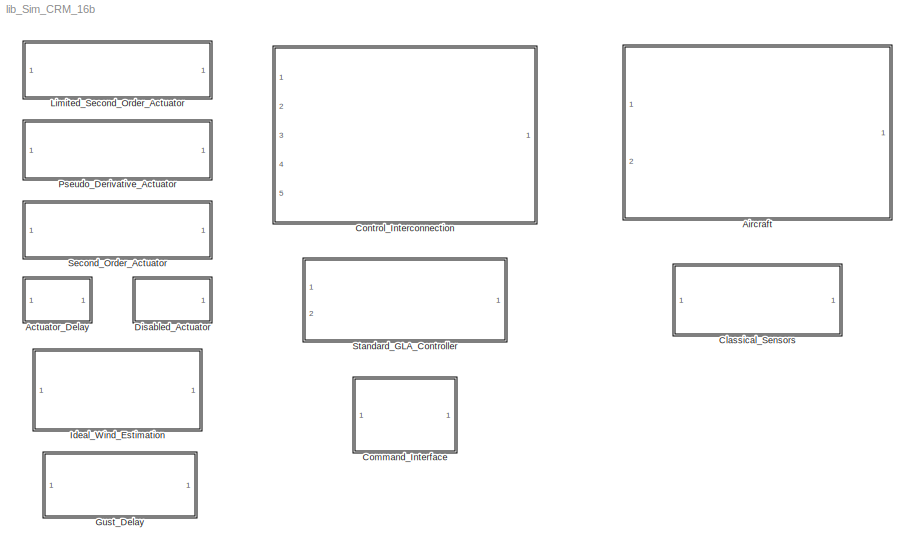
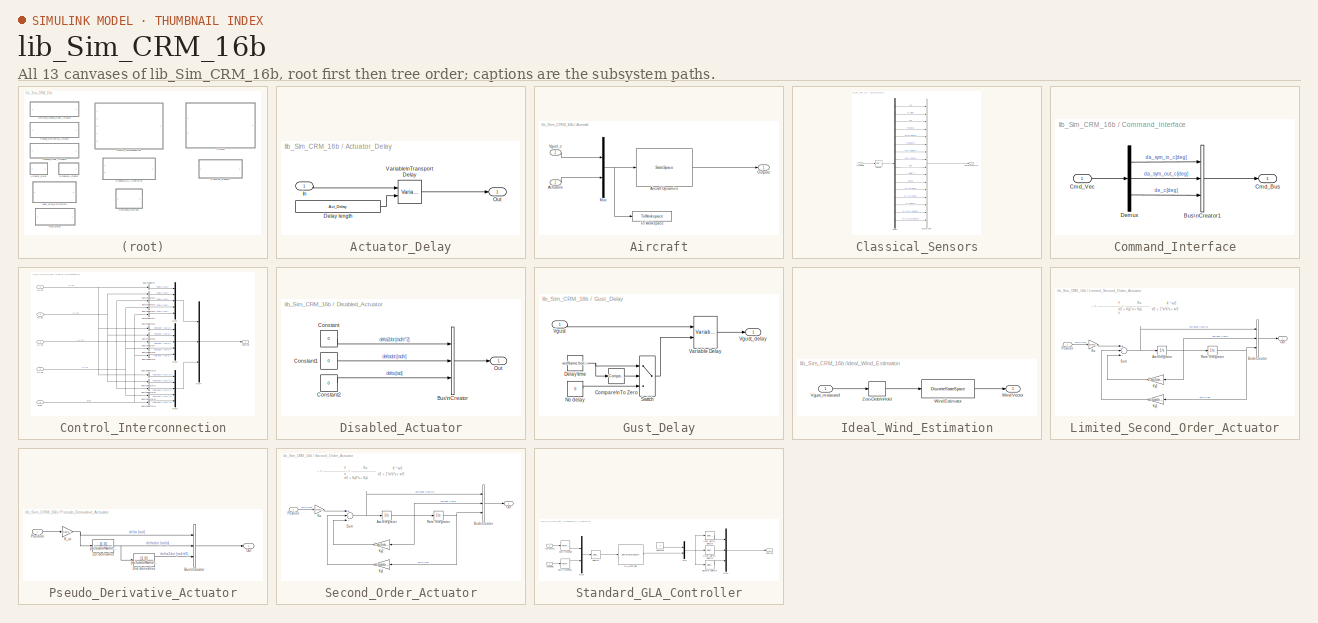
[diagram: thumbnail index - all 13 canvases of the model, root first then tree order]
MODEL lib_Sim_CRM_16b
KIND library
BLOCK [SubSystem] Actuator_Delay
  Ports = [1, 1]
  RequestExecContextInheritance = off
  SID = 129
BLOCK [Constant] Actuator_Delay/Delay length
  SID = 131
  Value = Act_Delay
BLOCK [Inport] Actuator_Delay/In
  IconDisplay = Port number
  SID = 130
BLOCK [Outport] Actuator_Delay/Out
  IconDisplay = Port number
  SID = 133
BLOCK [VariableTransportDelay] Actuator_Delay/Variable\nTransport Delay
  MaximumDelay = Act_Delay
  Ports = [2, 1]
  SID = 132
  ZeroDelay = on
BLOCK [SubSystem] Aircraft
  Ports = [2, 1]
  RequestExecContextInheritance = off
  SID = 1
BLOCK [Inport] Aircraft/Actuators
  IconDisplay = Port number
  SID = 2
BLOCK [StateSpace] Aircraft/Aircraft Dynamics
  A = modelName.linear_sys.A
  B = modelName.linear_sys.B
  C = [modelName.C_sensors; modelName.C_outputs]
  D = [modelName.D_sensors; modelName.D_outputs]
  Ports = [1, 1]
  SID = 4
  X0 = 0
BLOCK [Mux] Aircraft/Mux
  DisplayOption = bar
  Inputs = 2
  Ports = [2, 1]
  SID = 6
BLOCK [Outport] Aircraft/Outputs
  IconDisplay = Port number
  SID = 8
BLOCK [ToWorkspace] Aircraft/To Workspace
  Decimation = SimConfig.Logging.DecimationFactor
  FixptAsFi = on
  MaxDataPoints = inf
  Ports = [1]
  SID = 134
  SampleTime = -1
  SaveFormat = Structure With Time
  VariableName = Aircraft_Inputs
BLOCK [Inport] Aircraft/Vgust_z
  IconDisplay = Port number
  Port = 2
  SID = 3
BLOCK [SubSystem] Classical_Sensors
  Ports = [1, 1]
  RequestExecContextInheritance = off
  SID = 123
BLOCK [Inport] Classical_Sensors/AC_Outputs
  IconDisplay = Port number
  SID = 124
BLOCK [BusCreator] Classical_Sensors/Bus\nCreator
  DisplayOption = bar
  InheritFromInputs = on
  Inputs = 16
  Ports = [16, 1]
  SID = 125
BLOCK [Outport] Classical_Sensors/Classical_Sensors
  IconDisplay = Port number
  SID = 128
BLOCK [Demux] Classical_Sensors/Demux
  DisplayOption = bar
  Outputs = 16
  Ports = [1, 16]
  SID = 126
BLOCK [Selector] Classical_Sensors/Selector
  IndexOptions = Index vector (dialog)
  Indices = 1:CRM.Sensors.Classical.Num_Signals
  OutputSizes = 1
  Ports = [1, 1]
  SID = 127
BLOCK [SubSystem] Command_Interface
  Ports = [1, 1]
  RequestExecContextInheritance = off
  SID = 118
BLOCK [BusCreator] Command_Interface/Bus\nCreator1
  DisplayOption = bar
  InheritFromInputs = on
  Inputs = 3
  Ports = [3, 1]
  SID = 120
BLOCK [Outport] Command_Interface/Cmd_Bus
  IconDisplay = Port number
  SID = 122
BLOCK [Inport] Command_Interface/Cmd_Vec
  IconDisplay = Port number
  SID = 119
BLOCK [Demux] Command_Interface/Demux
  DisplayOption = bar
  Outputs = 3
  Ports = [1, 3]
  SID = 121
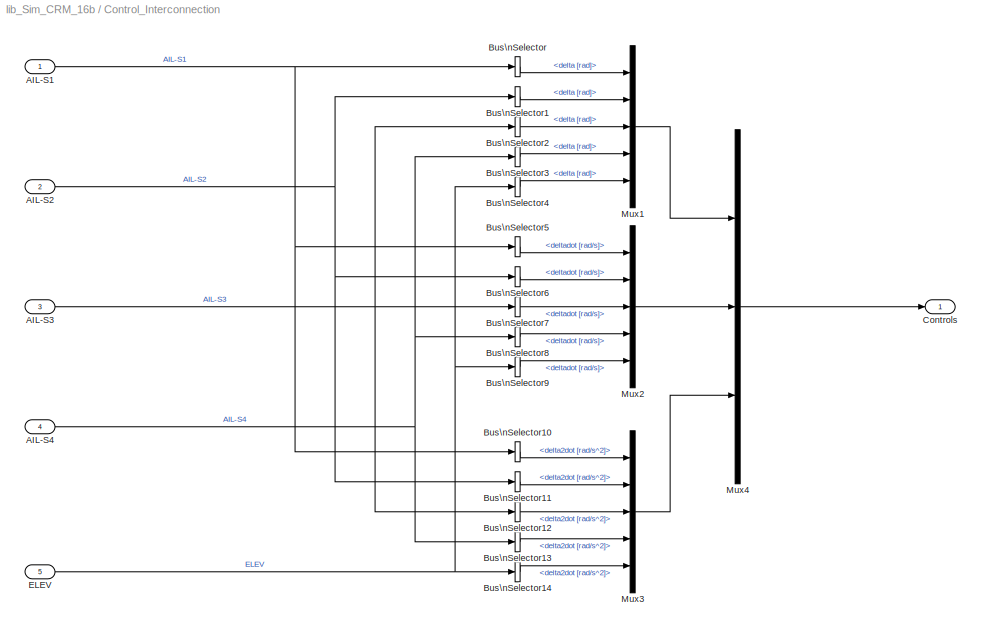
BLOCK [SubSystem] Control_Interconnection
  Ports = [5, 1]
  RequestExecContextInheritance = off
  SID = 10
BLOCK [Inport] Control_Interconnection/AIL-S1
  IconDisplay = Port number
  SID = 11
BLOCK [Inport] Control_Interconnection/AIL-S2
  IconDisplay = Port number
  Port = 2
  SID = 12
BLOCK [Inport] Control_Interconnection/AIL-S3
  IconDisplay = Port number
  Port = 3
  SID = 13
BLOCK [Inport] Control_Interconnection/AIL-S4
  IconDisplay = Port number
  Port = 4
  SID = 14
BLOCK [BusSelector] Control_Interconnection/Bus\nSelector
  OutputSignals = delta [rad]
  Ports = [1, 1]
  SID = 16
BLOCK [BusSelector] Control_Interconnection/Bus\nSelector1
  OutputSignals = delta [rad]
  Ports = [1, 1]
  SID = 17
BLOCK [BusSelector] Control_Interconnection/Bus\nSelector10
  OutputSignals = delta2dot [rad/s^2]
  Ports = [1, 1]
  SID = 18
BLOCK [BusSelector] Control_Interconnection/Bus\nSelector11
  OutputSignals = delta2dot [rad/s^2]
  Ports = [1, 1]
  SID = 19
BLOCK [BusSelector] Control_Interconnection/Bus\nSelector12
  OutputSignals = delta2dot [rad/s^2]
  Ports = [1, 1]
  SID = 20
BLOCK [BusSelector] Control_Interconnection/Bus\nSelector13
  OutputSignals = delta2dot [rad/s^2]
  Ports = [1, 1]
  SID = 21
BLOCK [BusSelector] Control_Interconnection/Bus\nSelector14
  OutputSignals = delta2dot [rad/s^2]
  Ports = [1, 1]
  SID = 22
BLOCK [BusSelector] Control_Interconnection/Bus\nSelector2
  OutputSignals = delta [rad]
  Ports = [1, 1]
  SID = 23
BLOCK [BusSelector] Control_Interconnection/Bus\nSelector3
  OutputSignals = delta [rad]
  Ports = [1, 1]
  SID = 24
BLOCK [BusSelector] Control_Interconnection/Bus\nSelector4
  OutputSignals = delta [rad]
  Ports = [1, 1]
  SID = 25
BLOCK [BusSelector] Control_Interconnection/Bus\nSelector5
  OutputSignals = deltadot [rad/s]
  Ports = [1, 1]
  SID = 26
BLOCK [BusSelector] Control_Interconnection/Bus\nSelector6
  OutputSignals = deltadot [rad/s]
  Ports = [1, 1]
  SID = 27
BLOCK [BusSelector] Control_Interconnection/Bus\nSelector7
  OutputSignals = deltadot [rad/s]
  Ports = [1, 1]
  SID = 28
BLOCK [BusSelector] Control_Interconnection/Bus\nSelector8
  OutputSignals = deltadot [rad/s]
  Ports = [1, 1]
  SID = 29
BLOCK [BusSelector] Control_Interconnection/Bus\nSelector9
  OutputSignals = deltadot [rad/s]
  Ports = [1, 1]
  SID = 30
BLOCK [Outport] Control_Interconnection/Controls
  IconDisplay = Port number
  SID = 35
BLOCK [Inport] Control_Interconnection/ELEV
  IconDisplay = Port number
  Port = 5
  SID = 15
BLOCK [Mux] Control_Interconnection/Mux1
  DisplayOption = bar
  Inputs = 5
  Ports = [5, 1]
  SID = 31
BLOCK [Mux] Control_Interconnection/Mux2
  DisplayOption = bar
  Inputs = 5
  Ports = [5, 1]
  SID = 32
BLOCK [Mux] Control_Interconnection/Mux3
  DisplayOption = bar
  Inputs = 5
  Ports = [5, 1]
  SID = 33
BLOCK [Mux] Control_Interconnection/Mux4
  DisplayOption = bar
  Inputs = 3
  Ports = [3, 1]
  SID = 34
BLOCK [SubSystem] Disabled_Actuator
  Ports = [0, 1]
  RequestExecContextInheritance = off
  SID = 36
BLOCK [BusCreator] Disabled_Actuator/Bus\nCreator
  DisplayOption = bar
  InheritFromInputs = on
  Inputs = 3
  Ports = [3, 1]
  SID = 37
BLOCK [Constant] Disabled_Actuator/Constant
  SID = 38
  Value = 0
BLOCK [Constant] Disabled_Actuator/Constant1
  SID = 39
  Value = 0
BLOCK [Constant] Disabled_Actuator/Constant2
  SID = 40
  Value = 0
BLOCK [Outport] Disabled_Actuator/Out
  IconDisplay = Port number
  SID = 41
BLOCK [SubSystem] Gust_Delay
  Ports = [1, 1]
  RequestExecContextInheritance = off
  SID = 42
BLOCK [Reference] Gust_Delay/Compare\nTo Zero  REF=simulink/Logic and Bit\nOperations/Compare\nTo Zero
  OutDataTypeStr = uint8
  Ports = [1, 1]
  SID = 44
  SourceBlock = simulink/Logic and Bit\nOperations/Compare\nTo Zero
  SourceType = Compare To Zero
  ZeroCross = off
  relop = >
BLOCK [Constant] Gust_Delay/Delay time
  SID = 45
  Value = weName.horizon*weName.dt
BLOCK [Constant] Gust_Delay/No delay
  SID = 46
  Value = 0
BLOCK [Switch] Gust_Delay/Switch
  Criteria = u2 ~= 0
  InputSameDT = off
  SID = 47
  SaturateOnIntegerOverflow = off
BLOCK [VariableTransportDelay] Gust_Delay/Variable Delay
  MaximumDelay = 10
  MaximumPoints = 1024*15
  Ports = [2, 1]
  SID = 48
  TransDelayFeedthrough = on
  ZeroDelay = on
BLOCK [Inport] Gust_Delay/Vgust
  IconDisplay = Port number
  SID = 43
BLOCK [Outport] Gust_Delay/Vgust_delay
  IconDisplay = Port number
  SID = 49
BLOCK [SubSystem] Ideal_Wind_Estimation
  Ports = [1, 1]
  RequestExecContextInheritance = off
  SID = 73
BLOCK [Inport] Ideal_Wind_Estimation/Vgust_measured
  IconDisplay = Port number
  SID = 74
BLOCK [DiscreteStateSpace] Ideal_Wind_Estimation/Wind Estimator
  A = weName.A
  B = weName.B
  C = weName.C
  D = weName.D
  SID = 75
  SampleTime = weName.dt
BLOCK [Outport] Ideal_Wind_Estimation/Wind Vector
  IconDisplay = Port number
  SID = 77
BLOCK [ZeroOrderHold] Ideal_Wind_Estimation/Zero-Order\nHold
  SID = 76
  SampleTime = weName.dt
BLOCK [SubSystem] Limited_Second_Order_Actuator
  Ports = [1, 1]
  RequestExecContextInheritance = off
  SID = 98
BLOCK [Integrator] Limited_Second_Order_Actuator/Acc Integrator
  LimitOutput = on
  LowerSaturationLimit = -actuatorName.rateLim
  Ports = [1, 1]
  SID = 100
  UpperSaturationLimit = actuatorName.rateLim
BLOCK [BusCreator] Limited_Second_Order_Actuator/Bus\nCreator
  DisplayOption = bar
  InheritFromInputs = on
  Inputs = 3
  Ports = [3, 1]
  SID = 101
BLOCK [Gain] Limited_Second_Order_Actuator/Ku
  Gain = actuatorName.K_st * (actuatorName.w_SO^2)
  OutDataTypeStr = Inherit: Inherit via internal rule
  ParamDataTypeStr = Inherit: Inherit via internal rule
  SID = 102
  SaturateOnIntegerOverflow = off
BLOCK [Gain] Limited_Second_Order_Actuator/Ky1
  Gain = actuatorName.w_SO^2
  OutDataTypeStr = Inherit: Inherit via internal rule
  ParamDataTypeStr = Inherit: Inherit via internal rule
  SID = 103
  SaturateOnIntegerOverflow = off
BLOCK [Gain] Limited_Second_Order_Actuator/Ky2
  Gain = 2*actuatorName.d_SO*actuatorName.w_SO
  OutDataTypeStr = Inherit: Inherit via internal rule
  ParamDataTypeStr = Inherit: Inherit via internal rule
  SID = 104
  SaturateOnIntegerOverflow = off
BLOCK [Outport] Limited_Second_Order_Actuator/Out
  IconDisplay = Port number
  SID = 107
BLOCK [Inport] Limited_Second_Order_Actuator/Position
  IconDisplay = Port number
  SID = 99
BLOCK [Integrator] Limited_Second_Order_Actuator/Rate Integrator
  LimitOutput = on
  LowerSaturationLimit = -actuatorName.posLim
  Ports = [1, 1]
  SID = 105
  UpperSaturationLimit = actuatorName.posLim
BLOCK [Sum] Limited_Second_Order_Actuator/Sum
  InputSameDT = off
  Inputs = +--
  OutDataTypeStr = Inherit: Inherit via internal rule
  Ports = [3, 1]
  SID = 106
  SaturateOnIntegerOverflow = off
BLOCK [SubSystem] Pseudo_Derivative_Actuator
  Ports = [1, 1]
  RequestExecContextInheritance = off
  SID = 50
BLOCK [TransferFcn] Pseudo_Derivative_Actuator/1st derivative
  Denominator = [actuatorName.tau_PD 1]
  Numerator = [1 0]
  SID = 52
BLOCK [TransferFcn] Pseudo_Derivative_Actuator/2nd derivative
  Denominator = [actuatorName.tau_PD 1]
  Numerator = [1 0]
  SID = 53
BLOCK [BusCreator] Pseudo_Derivative_Actuator/Bus\nCreator
  DisplayOption = bar
  InheritFromInputs = on
  Inputs = 3
  Ports = [3, 1]
  SID = 54
BLOCK [Gain] Pseudo_Derivative_Actuator/K_st
  Gain = actuatorName.K_st
  OutDataTypeStr = Inherit: Inherit via internal rule
  ParamDataTypeStr = Inherit: Inherit via internal rule
  SID = 55
  SaturateOnIntegerOverflow = off
BLOCK [Outport] Pseudo_Derivative_Actuator/Out
  IconDisplay = Port number
  SID = 56
BLOCK [Inport] Pseudo_Derivative_Actuator/Position
  IconDisplay = Port number
  SID = 51
BLOCK [SubSystem] Second_Order_Actuator
  Ports = [1, 1]
  RequestExecContextInheritance = off
  SID = 57
BLOCK [Integrator] Second_Order_Actuator/Acc Integrator
  Ports = [1, 1]
  SID = 59
BLOCK [BusCreator] Second_Order_Actuator/Bus\nCreator
  DisplayOption = bar
  InheritFromInputs = on
  Inputs = 3
  Ports = [3, 1]
  SID = 60
BLOCK [Gain] Second_Order_Actuator/Ku
  Gain = actuatorName.K_st * (actuatorName.w_SO^2)
  OutDataTypeStr = Inherit: Inherit via internal rule
  ParamDataTypeStr = Inherit: Inherit via internal rule
  SID = 61
  SaturateOnIntegerOverflow = off
BLOCK [Gain] Second_Order_Actuator/Ky1
  Gain = actuatorName.w_SO^2
  OutDataTypeStr = Inherit: Inherit via internal rule
  ParamDataTypeStr = Inherit: Inherit via internal rule
  SID = 62
  SaturateOnIntegerOverflow = off
BLOCK [Gain] Second_Order_Actuator/Ky2
  Gain = 2*actuatorName.d_SO*actuatorName.w_SO
  OutDataTypeStr = Inherit: Inherit via internal rule
  ParamDataTypeStr = Inherit: Inherit via internal rule
  SID = 63
  SaturateOnIntegerOverflow = off
BLOCK [Outport] Second_Order_Actuator/Out
  IconDisplay = Port number
  SID = 66
BLOCK [Inport] Second_Order_Actuator/Position
  IconDisplay = Port number
  SID = 58
BLOCK [Integrator] Second_Order_Actuator/Rate Integrator
  Ports = [1, 1]
  SID = 64
BLOCK [Sum] Second_Order_Actuator/Sum
  InputSameDT = off
  Inputs = +--
  OutDataTypeStr = Inherit: Inherit via internal rule
  Ports = [3, 1]
  SID = 65
  SaturateOnIntegerOverflow = off
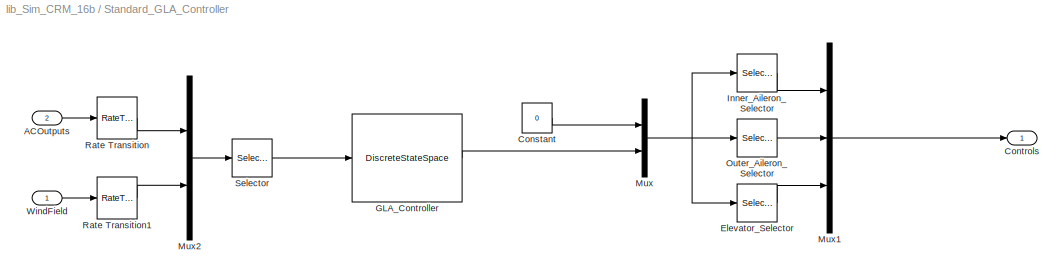
BLOCK [SubSystem] Standard_GLA_Controller
  Ports = [2, 1]
  RequestExecContextInheritance = off
  SID = 80
BLOCK [Inport] Standard_GLA_Controller/ACOutputs
  IconDisplay = Port number
  Port = 2
  SID = 81
BLOCK [Constant] Standard_GLA_Controller/Constant
  SID = 89
  Value = 0
BLOCK [Outport] Standard_GLA_Controller/Controls
  IconDisplay = Port number
  SID = 82
BLOCK [Selector] Standard_GLA_Controller/Elevator_Selector
  IndexMode = Zero-based
  IndexOptions = Index vector (dialog)
  Indices = [glaName.de_idx]
  OutputSizes = 1
  Ports = [1, 1]
  SID = 84
BLOCK [DiscreteStateSpace] Standard_GLA_Controller/GLA_Controller
  A = glaName.A
  B = glaName.B
  C = glaName.C
  D = glaName.D
  SID = 79
  SampleTime = glaName.dt
BLOCK [Selector] Standard_GLA_Controller/Inner_Aileron_Selector
  IndexMode = Zero-based
  IndexOptions = Index vector (dialog)
  Indices = [glaName.dain_idx]
  OutputSizes = 1
  Ports = [1, 1]
  SID = 86
BLOCK [Mux] Standard_GLA_Controller/Mux
  DisplayOption = bar
  Inputs = 2
  Ports = [2, 1]
  SID = 87
BLOCK [Mux] Standard_GLA_Controller/Mux1
  DisplayOption = bar
  Inputs = 3
  Ports = [3, 1]
  SID = 90
BLOCK [Mux] Standard_GLA_Controller/Mux2
  DisplayOption = bar
  Inputs = 2
  Ports = [2, 1]
  SID = 94
BLOCK [Selector] Standard_GLA_Controller/Outer_Aileron_Selector
  IndexMode = Zero-based
  IndexOptions = Index vector (dialog)
  Indices = [glaName.daout_idx]
  OutputSizes = 1
  Ports = [1, 1]
  SID = 85
BLOCK [RateTransition] Standard_GLA_Controller/Rate Transition
  OutPortSampleTime = glaName.dt
  SID = 92
BLOCK [RateTransition] Standard_GLA_Controller/Rate Transition1
  OutPortSampleTime = glaName.dt
  SID = 93
BLOCK [Selector] Standard_GLA_Controller/Selector
  IndexOptions = Index vector (dialog)
  Indices = glaName.measure_idx
  OutputSizes = 1
  Ports = [1, 1]
  SID = 95
BLOCK [Inport] Standard_GLA_Controller/WindField
  IconDisplay = Port number
  SID = 91
ANNOTATION Limited_Second_Order_Actuator: -- = ------------------------ = -------------------------
ANNOTATION Limited_Second_Order_Actuator: K * w^2
ANNOTATION Limited_Second_Order_Actuator: Ku
ANNOTATION Limited_Second_Order_Actuator: s^2 + 2*w*d*s + w^2
ANNOTATION Limited_Second_Order_Actuator: s^2 + Ky2*s + Ky1
ANNOTATION Limited_Second_Order_Actuator: y\n\nu
ANNOTATION Second_Order_Actuator: -- = ------------------------ = -------------------------
ANNOTATION Second_Order_Actuator: K * w^2
ANNOTATION Second_Order_Actuator: Ku
ANNOTATION Second_Order_Actuator: s^2 + 2*w*d*s + w^2
ANNOTATION Second_Order_Actuator: s^2 + Ky2*s + Ky1
ANNOTATION Second_Order_Actuator: y\n\nu
LINE Actuator_Delay/Delay length:1 -> Actuator_Delay/Variable\nTransport Delay:2
LINE Actuator_Delay/In:1 -> Actuator_Delay/Variable\nTransport Delay:1
LINE Actuator_Delay/Variable\nTransport Delay:1 -> Actuator_Delay/Out:1
LINE Aircraft/Actuators:1 -> Aircraft/Mux:2
LINE Aircraft/Aircraft Dynamics:1 -> Aircraft/Outputs:1
NET Aircraft/Mux:1 -> Aircraft/Aircraft Dynamics:1, Aircraft/To Workspace:1
LINE Aircraft/Vgust_z:1 -> Aircraft/Mux:1
LINE Classical_Sensors/AC_Outputs:1 -> Classical_Sensors/Selector:1
LINE Classical_Sensors/Bus\nCreator:1 -> Classical_Sensors/Classical_Sensors:1
LINE Classical_Sensors/Demux:1 -> Classical_Sensors/Bus\nCreator:1
LINE Classical_Sensors/Demux:10 -> Classical_Sensors/Bus\nCreator:10
LINE Classical_Sensors/Demux:11 -> Classical_Sensors/Bus\nCreator:11
LINE Classical_Sensors/Demux:12 -> Classical_Sensors/Bus\nCreator:12
LINE Classical_Sensors/Demux:13 -> Classical_Sensors/Bus\nCreator:13
LINE Classical_Sensors/Demux:14 -> Classical_Sensors/Bus\nCreator:14
LINE Classical_Sensors/Demux:15 -> Classical_Sensors/Bus\nCreator:15
LINE Classical_Sensors/Demux:16 -> Classical_Sensors/Bus\nCreator:16
LINE Classical_Sensors/Demux:2 -> Classical_Sensors/Bus\nCreator:2
LINE Classical_Sensors/Demux:3 -> Classical_Sensors/Bus\nCreator:3
LINE Classical_Sensors/Demux:4 -> Classical_Sensors/Bus\nCreator:4
LINE Classical_Sensors/Demux:5 -> Classical_Sensors/Bus\nCreator:5
LINE Classical_Sensors/Demux:6 -> Classical_Sensors/Bus\nCreator:6
LINE Classical_Sensors/Demux:7 -> Classical_Sensors/Bus\nCreator:7
LINE Classical_Sensors/Demux:8 -> Classical_Sensors/Bus\nCreator:8
LINE Classical_Sensors/Demux:9 -> Classical_Sensors/Bus\nCreator:9
LINE Classical_Sensors/Selector:1 -> Classical_Sensors/Demux:1
LINE Command_Interface/Bus\nCreator1:1 -> Command_Interface/Cmd_Bus:1
LINE Command_Interface/Cmd_Vec:1 -> Command_Interface/Demux:1
LINE Command_Interface/Demux:1 -> Command_Interface/Bus\nCreator1:1
LINE Command_Interface/Demux:2 -> Command_Interface/Bus\nCreator1:2
LINE Command_Interface/Demux:3 -> Command_Interface/Bus\nCreator1:3
NET Control_Interconnection/AIL-S1:1 -> Control_Interconnection/Bus\nSelector10:1, Control_Interconnection/Bus\nSelector5:1, Control_Interconnection/Bus\nSelector:1
NET Control_Interconnection/AIL-S2:1 -> Control_Interconnection/Bus\nSelector11:1, Control_Interconnection/Bus\nSelector1:1, Control_Interconnection/Bus\nSelector6:1
NET Control_Interconnection/AIL-S3:1 -> Control_Interconnection/Bus\nSelector12:1, Control_Interconnection/Bus\nSelector2:1, Control_Interconnection/Bus\nSelector7:1
NET Control_Interconnection/AIL-S4:1 -> Control_Interconnection/Bus\nSelector13:1, Control_Interconnection/Bus\nSelector3:1, Control_Interconnection/Bus\nSelector8:1
LINE Control_Interconnection/Bus\nSelector10:1 -> Control_Interconnection/Mux3:1
LINE Control_Interconnection/Bus\nSelector11:1 -> Control_Interconnection/Mux3:2
LINE Control_Interconnection/Bus\nSelector12:1 -> Control_Interconnection/Mux3:3
LINE Control_Interconnection/Bus\nSelector13:1 -> Control_Interconnection/Mux3:4
LINE Control_Interconnection/Bus\nSelector14:1 -> Control_Interconnection/Mux3:5
LINE Control_Interconnection/Bus\nSelector1:1 -> Control_Interconnection/Mux1:2
LINE Control_Interconnection/Bus\nSelector2:1 -> Control_Interconnection/Mux1:3
LINE Control_Interconnection/Bus\nSelector3:1 -> Control_Interconnection/Mux1:4
LINE Control_Interconnection/Bus\nSelector4:1 -> Control_Interconnection/Mux1:5
LINE Control_Interconnection/Bus\nSelector5:1 -> Control_Interconnection/Mux2:1
LINE Control_Interconnection/Bus\nSelector6:1 -> Control_Interconnection/Mux2:2
LINE Control_Interconnection/Bus\nSelector7:1 -> Control_Interconnection/Mux2:3
LINE Control_Interconnection/Bus\nSelector8:1 -> Control_Interconnection/Mux2:4
LINE Control_Interconnection/Bus\nSelector9:1 -> Control_Interconnection/Mux2:5
LINE Control_Interconnection/Bus\nSelector:1 -> Control_Interconnection/Mux1:1
NET Control_Interconnection/ELEV:1 -> Control_Interconnection/Bus\nSelector14:1, Control_Interconnection/Bus\nSelector4:1, Control_Interconnection/Bus\nSelector9:1
LINE Control_Interconnection/Mux1:1 -> Control_Interconnection/Mux4:1
LINE Control_Interconnection/Mux2:1 -> Control_Interconnection/Mux4:2
LINE Control_Interconnection/Mux3:1 -> Control_Interconnection/Mux4:3
LINE Control_Interconnection/Mux4:1 -> Control_Interconnection/Controls:1
LINE Disabled_Actuator/Bus\nCreator:1 -> Disabled_Actuator/Out:1
LINE Disabled_Actuator/Constant1:1 -> Disabled_Actuator/Bus\nCreator:2
LINE Disabled_Actuator/Constant2:1 -> Disabled_Actuator/Bus\nCreator:3
LINE Disabled_Actuator/Constant:1 -> Disabled_Actuator/Bus\nCreator:1
LINE Gust_Delay/Compare\nTo Zero:1 -> Gust_Delay/Switch:2
NET Gust_Delay/Delay time:1 -> Gust_Delay/Compare\nTo Zero:1, Gust_Delay/Switch:1
LINE Gust_Delay/No delay:1 -> Gust_Delay/Switch:3
LINE Gust_Delay/Switch:1 -> Gust_Delay/Variable Delay:2
LINE Gust_Delay/Variable Delay:1 -> Gust_Delay/Vgust_delay:1
LINE Gust_Delay/Vgust:1 -> Gust_Delay/Variable Delay:1
LINE Ideal_Wind_Estimation/Vgust_measured:1 -> Ideal_Wind_Estimation/Zero-Order\nHold:1
LINE Ideal_Wind_Estimation/Wind Estimator:1 -> Ideal_Wind_Estimation/Wind Vector:1
LINE Ideal_Wind_Estimation/Zero-Order\nHold:1 -> Ideal_Wind_Estimation/Wind Estimator:1
NET Limited_Second_Order_Actuator/Acc Integrator:1 -> Limited_Second_Order_Actuator/Bus\nCreator:2, Limited_Second_Order_Actuator/Ky2:1, Limited_Second_Order_Actuator/Rate Integrator:1
LINE Limited_Second_Order_Actuator/Bus\nCreator:1 -> Limited_Second_Order_Actuator/Out:1
LINE Limited_Second_Order_Actuator/Ku:1 -> Limited_Second_Order_Actuator/Sum:1
LINE Limited_Second_Order_Actuator/Ky1:1 -> Limited_Second_Order_Actuator/Sum:2
LINE Limited_Second_Order_Actuator/Ky2:1 -> Limited_Second_Order_Actuator/Sum:3
LINE Limited_Second_Order_Actuator/Position:1 -> Limited_Second_Order_Actuator/Ku:1
NET Limited_Second_Order_Actuator/Rate Integrator:1 -> Limited_Second_Order_Actuator/Bus\nCreator:3, Limited_Second_Order_Actuator/Ky1:1
NET Limited_Second_Order_Actuator/Sum:1 -> Limited_Second_Order_Actuator/Acc Integrator:1, Limited_Second_Order_Actuator/Bus\nCreator:1
NET Pseudo_Derivative_Actuator/1st derivative:1 -> Pseudo_Derivative_Actuator/2nd derivative:1, Pseudo_Derivative_Actuator/Bus\nCreator:2
LINE Pseudo_Derivative_Actuator/2nd derivative:1 -> Pseudo_Derivative_Actuator/Bus\nCreator:3
LINE Pseudo_Derivative_Actuator/Bus\nCreator:1 -> Pseudo_Derivative_Actuator/Out:1
NET Pseudo_Derivative_Actuator/K_st:1 -> Pseudo_Derivative_Actuator/1st derivative:1, Pseudo_Derivative_Actuator/Bus\nCreator:1
LINE Pseudo_Derivative_Actuator/Position:1 -> Pseudo_Derivative_Actuator/K_st:1
NET Second_Order_Actuator/Acc Integrator:1 -> Second_Order_Actuator/Bus\nCreator:2, Second_Order_Actuator/Ky2:1, Second_Order_Actuator/Rate Integrator:1
LINE Second_Order_Actuator/Bus\nCreator:1 -> Second_Order_Actuator/Out:1
LINE Second_Order_Actuator/Ku:1 -> Second_Order_Actuator/Sum:1
LINE Second_Order_Actuator/Ky1:1 -> Second_Order_Actuator/Sum:2
LINE Second_Order_Actuator/Ky2:1 -> Second_Order_Actuator/Sum:3
LINE Second_Order_Actuator/Position:1 -> Second_Order_Actuator/Ku:1
NET Second_Order_Actuator/Rate Integrator:1 -> Second_Order_Actuator/Bus\nCreator:3, Second_Order_Actuator/Ky1:1
NET Second_Order_Actuator/Sum:1 -> Second_Order_Actuator/Acc Integrator:1, Second_Order_Actuator/Bus\nCreator:1
LINE Standard_GLA_Controller/ACOutputs:1 -> Standard_GLA_Controller/Rate Transition:1
LINE Standard_GLA_Controller/Constant:1 -> Standard_GLA_Controller/Mux:1
LINE Standard_GLA_Controller/Elevator_Selector:1 -> Standard_GLA_Controller/Mux1:3
LINE Standard_GLA_Controller/GLA_Controller:1 -> Standard_GLA_Controller/Mux:2
LINE Standard_GLA_Controller/Inner_Aileron_Selector:1 -> Standard_GLA_Controller/Mux1:1
LINE Standard_GLA_Controller/Mux1:1 -> Standard_GLA_Controller/Controls:1
LINE Standard_GLA_Controller/Mux2:1 -> Standard_GLA_Controller/Selector:1
NET Standard_GLA_Controller/Mux:1 -> Standard_GLA_Controller/Elevator_Selector:1, Standard_GLA_Controller/Inner_Aileron_Selector:1, Standard_GLA_Controller/Outer_Aileron_Selector:1
LINE Standard_GLA_Controller/Outer_Aileron_Selector:1 -> Standard_GLA_Controller/Mux1:2
LINE Standard_GLA_Controller/Rate Transition1:1 -> Standard_GLA_Controller/Mux2:2
LINE Standard_GLA_Controller/Rate Transition:1 -> Standard_GLA_Controller/Mux2:1
LINE Standard_GLA_Controller/Selector:1 -> Standard_GLA_Controller/GLA_Controller:1
LINE Standard_GLA_Controller/WindField:1 -> Standard_GLA_Controller/Rate Transition1:1
note: NET lines group one-source signal fan-out (src -> all destinations, sorted); 1:1 wires keep LINE
